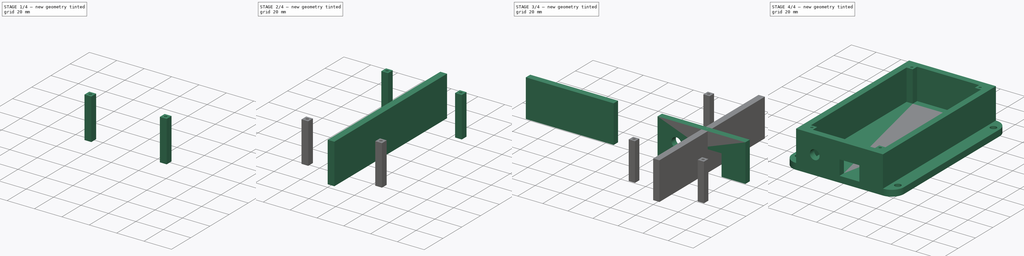
[diagram: build sequence overview — one tinted view per stage of 4, left to right]
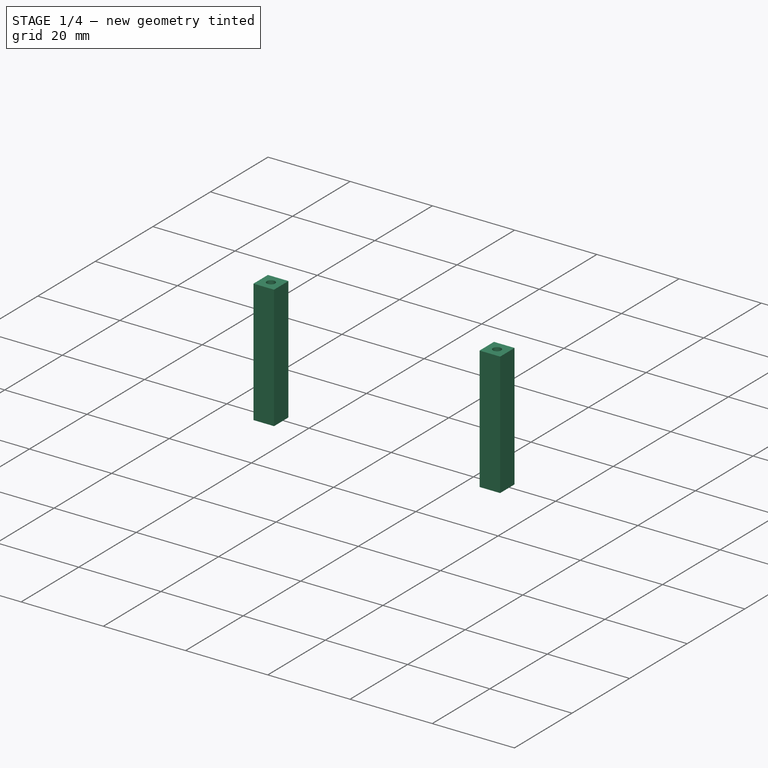
[diagram: stage 1 of 4 — iso view after this stage's code; geometry added in this stage tinted green]
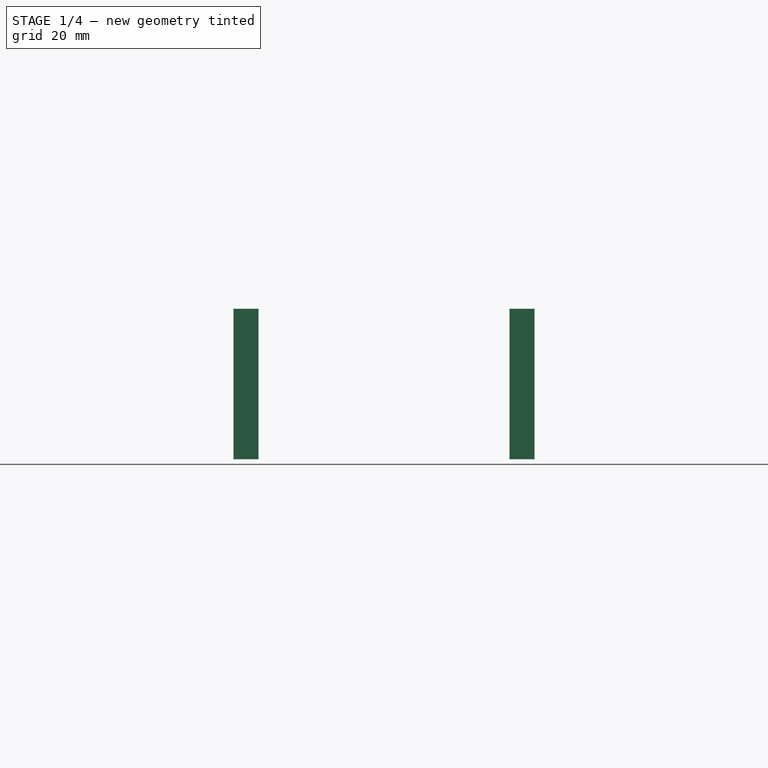
[diagram: stage 1 of 4 — front view after this stage's code; geometry added in this stage tinted green]
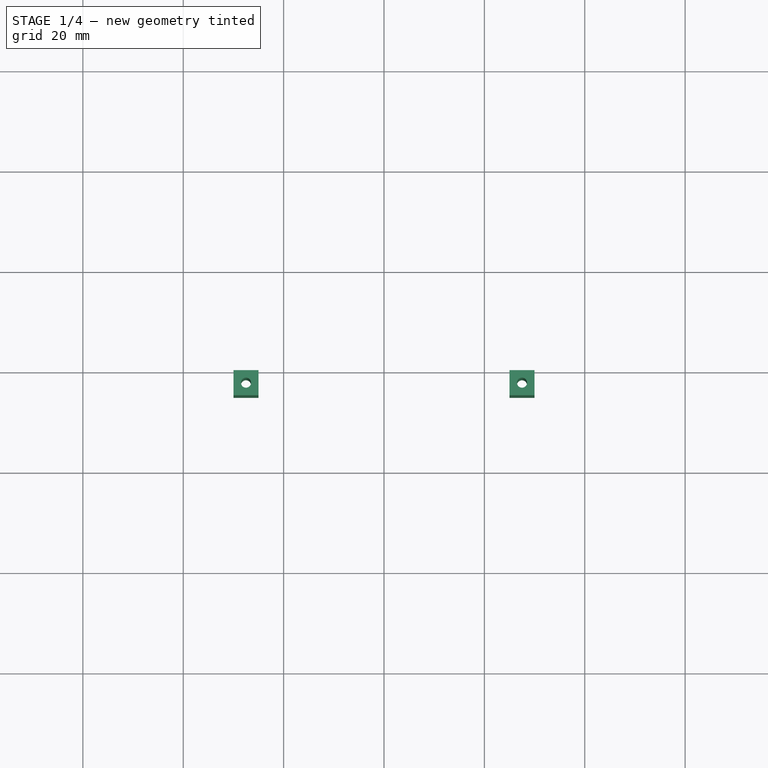
[diagram: stage 1 of 4 — top view after this stage's code; geometry added in this stage tinted green]
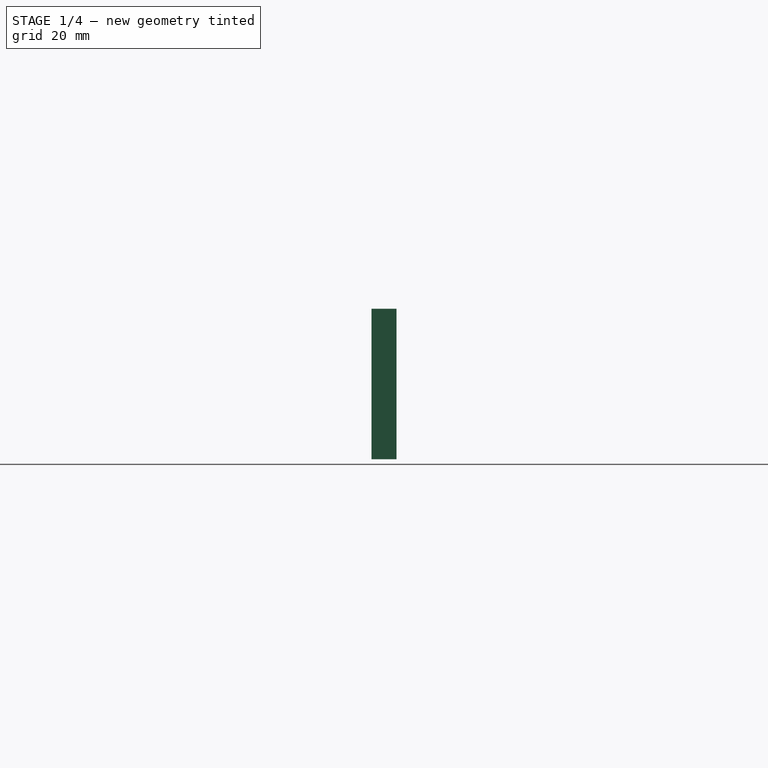
[diagram: stage 1 of 4 — right view after this stage's code; geometry added in this stage tinted green]
FCSTD DOCUMENT  (FreeCAD 0.19R24291 (Git))
Label: homework1.1
License: All rights reserved
LicenseURL: http://en.wikipedia.org/wiki/All_rights_reserved
objects: Sketcher::SketchObject×9, PartDesign::Pad×9, PartDesign::Body×9, Part::MultiFuse×1
note: 37 computed .brp shape members not serialized (recipe doc carries the construction recipe); baked Part::Feature solids carry a one-line shape summary decoded from their .brp

FEATURE [PartDesign::Body] Body006  label="Hole in the left frame"
  Group = -> [Sketch007,Pad006]
  Origin = -> Origin006
  Placement = pos=(0,15,0) rot=(0,0,1;0rad)
  Tip = -> Pad006
FEATURE [Sketcher::SketchObject] Sketch008
  FullyConstrained = true
  MapMode = 5
  Support = -> [XY_Plane007]
  sketch-geometry (5):
    g0: LineSegment StartX=-30 StartY=-40 StartZ=0 EndX=-25 EndY=-40 EndZ=0
    g1: LineSegment StartX=-25 StartY=-40 StartZ=0 EndX=-25 EndY=-45 EndZ=0
    g2: LineSegment StartX=-25 StartY=-45 StartZ=0 EndX=-30 EndY=-45 EndZ=0
    g3: LineSegment StartX=-30 StartY=-45 StartZ=0 EndX=-30 EndY=-40 EndZ=0
    g4: Circle CenterX=-27.5 CenterY=-42.5 CenterZ=0 NormalX=0 NormalY=0 NormalZ=1 AngleXU=0 Radius=1
  constraints (15):
    c: Coincident(g0,g1)
    c: Coincident(g1,g2)
    c: Coincident(g2,g3)
    c: Coincident(g3,g0)
    c: Horizontal(g0)
    c: Horizontal(g2)
    c: Vertical(g1)
    c: Vertical(g3)
    c: DistanceY(g0,g-1) = 40
    c: DistanceX(g1,g-1) = 25
    c: DistanceY(g3,g3) = 5
    c: DistanceX(g2,g2) = 5
    c: DistanceY(g4,g0) = 2.5
    c: DistanceX(g0,g4) = 2.5
    c: Diameter(g4) = 2
FEATURE [PartDesign::Pad] Pad007
  Direction = (1,1,1)
  Length = 30
  Length2 = 100
  Profile = -> Sketch008
  Type = 0
FEATURE [PartDesign::Body] Body007  label="Hole in the left frame1"
  Group = -> [Sketch008,Pad007]
  Origin = -> Origin007
  Placement = pos=(0,-15,0) rot=(0,0,1;0rad)
  Tip = -> Pad007
FEATURE [Sketcher::SketchObject] Sketch009
  FullyConstrained = true
  MapMode = 5
  Support = -> [XY_Plane008]
  sketch-geometry (5):
    g0: LineSegment StartX=25 StartY=-40 StartZ=0 EndX=30 EndY=-40 EndZ=0
    g1: LineSegment StartX=30 StartY=-40 StartZ=0 EndX=30 EndY=-45 EndZ=0
    g2: LineSegment StartX=30 StartY=-45 StartZ=0 EndX=25 EndY=-45 EndZ=0
    g3: LineSegment StartX=25 StartY=-45 StartZ=0 EndX=25 EndY=-40 EndZ=0
    g4: Circle CenterX=27.5 CenterY=-42.5 CenterZ=0 NormalX=0 NormalY=0 NormalZ=1 AngleXU=0 Radius=1
  constraints (15):
    c: Coincident(g0,g1)
    c: Coincident(g1,g2)
    c: Coincident(g2,g3)
    c: Coincident(g3,g0)
    c: Horizontal(g0)
    c: Horizontal(g2)
    c: Vertical(g1)
    c: Vertical(g3)
    c: DistanceX(g-1,g0) = 25
    c: DistanceY(g0,g-1) = 40
    c: DistanceY(g3,g3) = 5
    c: DistanceX(g0,g0) = 5
    c: DistanceY(g4,g0) = 2.5
    c: DistanceX(g0,g4) = 2.5
    c: Diameter(g4) = 2
FEATURE [PartDesign::Pad] Pad008
  Direction = (1,1,1)
  Length = 30
  Length2 = 100
  Profile = -> Sketch009
  Type = 0
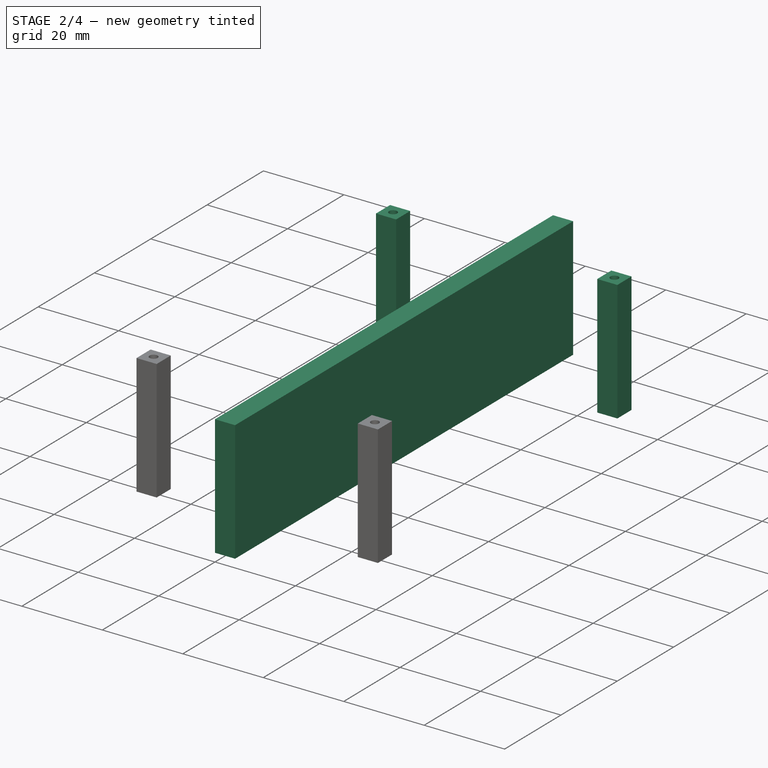
[diagram: stage 2 of 4 — iso view after this stage's code; geometry added in this stage tinted green]
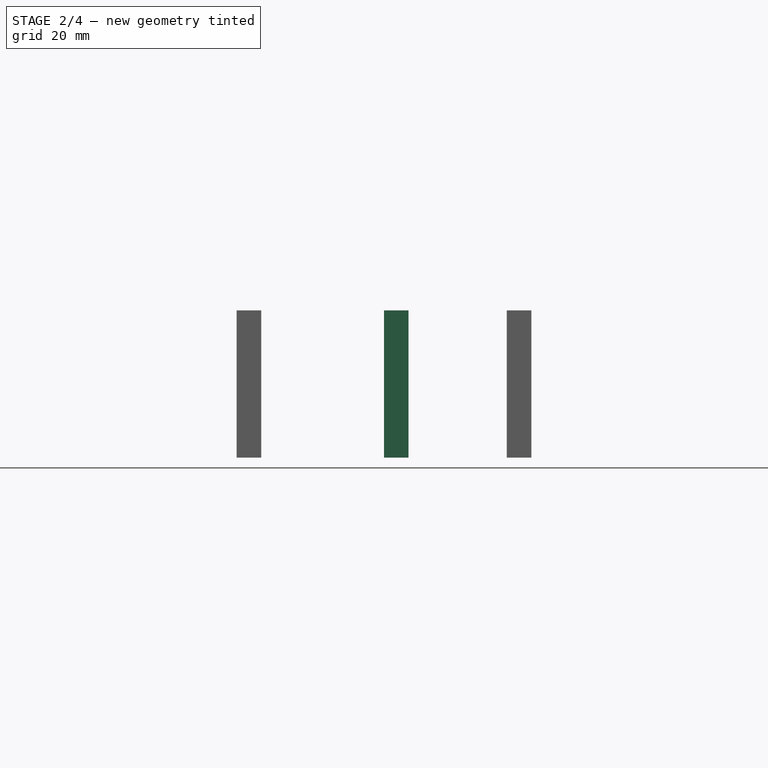
[diagram: stage 2 of 4 — front view after this stage's code; geometry added in this stage tinted green]
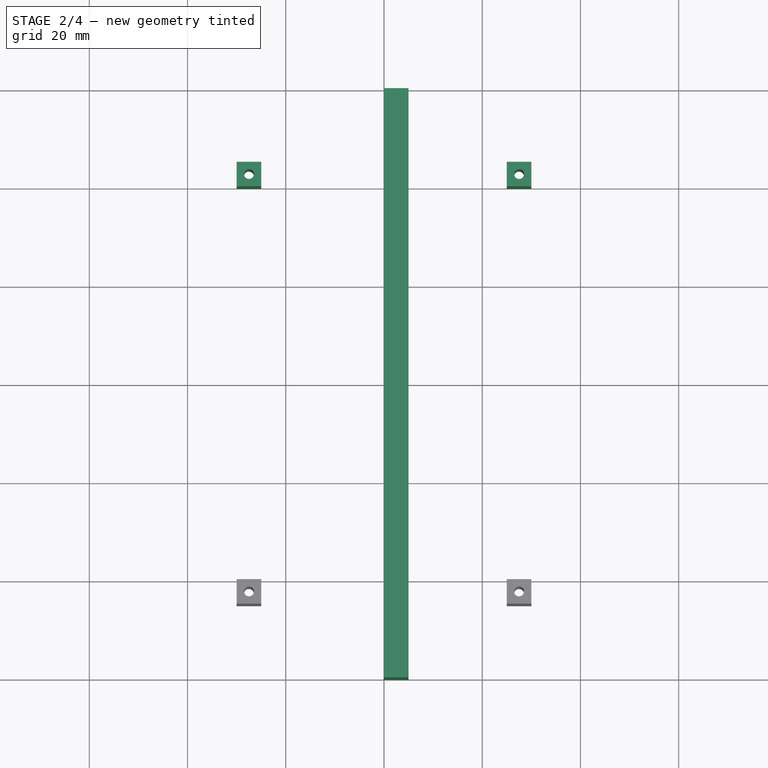
[diagram: stage 2 of 4 — top view after this stage's code; geometry added in this stage tinted green]
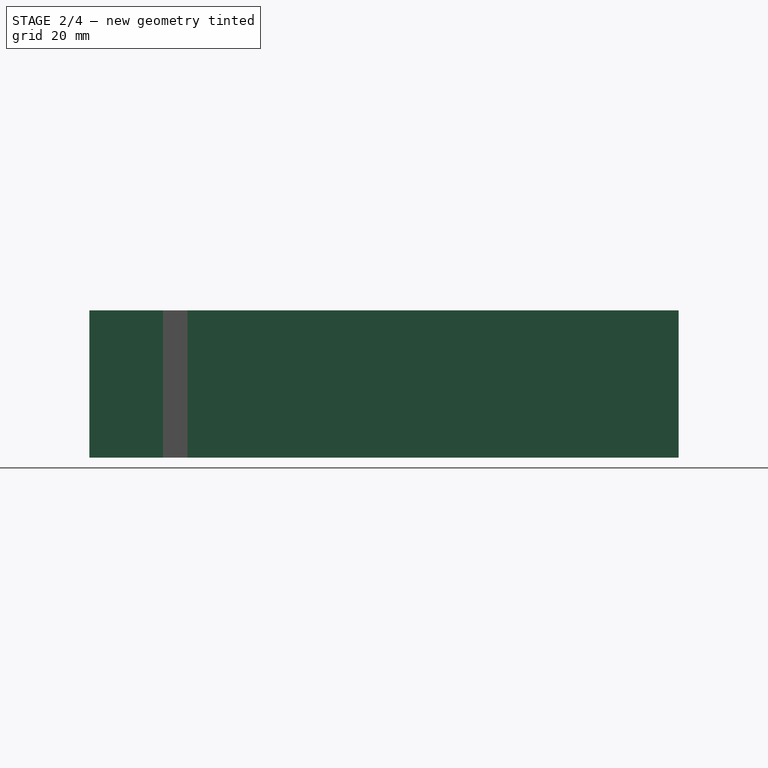
[diagram: stage 2 of 4 — right view after this stage's code; geometry added in this stage tinted green]
FEATURE [PartDesign::Body] Body003
  Group = -> [Sketch003,Pad003]
  Origin = -> Origin003
  Placement = pos=(30,0,0) rot=(0,0,1;0rad)
  Tip = -> Pad003
FEATURE [Sketcher::SketchObject] Sketch004
  FullyConstrained = true
  MapMode = 5
  Placement = pos=(0,0,0) rot=(0.57735,0.57735,0.57735;2.0944rad)
  Support = -> [YZ_Plane004]
  sketch-geometry (4):
    g0: LineSegment StartX=60 StartY=30 StartZ=0 EndX=-60 EndY=30 EndZ=0
    g1: LineSegment StartX=-60 StartY=30 StartZ=0 EndX=-60 EndY=0 EndZ=0
    g2: LineSegment StartX=-60 StartY=0 StartZ=0 EndX=60 EndY=0 EndZ=0
    g3: LineSegment StartX=60 StartY=0 StartZ=0 EndX=60 EndY=30 EndZ=0
  constraints (11):
    c: Coincident(g0,g1)
    c: Coincident(g1,g2)
    c: Coincident(g2,g3)
    c: Coincident(g3,g0)
    c: Horizontal(g0)
    c: Vertical(g1)
    c: Vertical(g3)
    c: DistanceX(g2,g2) = 120
    c: DistanceY(g3,g3) = 30
    c: PointOnObject(g2,g-1)
    c: Symmetric(g1,g2,g-2)
FEATURE [PartDesign::Pad] Pad004
  Direction = (1,1,1)
  Length = 5
  Length2 = 100
  Placement = pos=(0,0,0) rot=(0.57735,0.57735,0.57735;2.0944rad)
  Profile = -> Sketch004
  Type = 0
FEATURE [PartDesign::Body] Body004
  Group = -> [Sketch004,Pad004]
  Origin = -> Origin004
  Placement = pos=(-35,0,0) rot=(0,0,1;0rad)
  Tip = -> Pad004
FEATURE [Sketcher::SketchObject] Sketch005
  FullyConstrained = true
  MapMode = 5
  Support = -> [XY_Plane005]
  sketch-geometry (5):
    g0: LineSegment StartX=25 StartY=45 StartZ=0 EndX=30 EndY=45 EndZ=0
    g1: LineSegment StartX=30 StartY=45 StartZ=0 EndX=30 EndY=40 EndZ=0
    g2: LineSegment StartX=30 StartY=40 StartZ=0 EndX=25 EndY=40 EndZ=0
    g3: LineSegment StartX=25 StartY=40 StartZ=0 EndX=25 EndY=45 EndZ=0
    g4: Circle CenterX=27.5 CenterY=42.5 CenterZ=0 NormalX=0 NormalY=0 NormalZ=1 AngleXU=0 Radius=1
  constraints (15):
    c: Coincident(g0,g1)
    c: Coincident(g1,g2)
    c: Coincident(g2,g3)
    c: Coincident(g3,g0)
    c: Horizontal(g0)
    c: Horizontal(g2)
    c: Vertical(g1)
    c: Vertical(g3)
    c: DistanceY(g-1,g2) = 40
    c: DistanceX(g-1,g0) = 25
    c: DistanceX(g0,g0) = 5
    c: DistanceY(g1,g1) = 5
    c: DistanceY(g4,g0) = 2.5
    c: DistanceX(g0,g4) = 2.5
    c: Diameter(g4) = 2
FEATURE [PartDesign::Pad] Pad005
  Direction = (1,1,1)
  Length = 30
  Length2 = 100
  Profile = -> Sketch005
  Type = 0
FEATURE [PartDesign::Body] Body005  label="Hole in the right frame"
  Group = -> [Sketch005,Pad005]
  Origin = -> Origin005
  Placement = pos=(0,15,0) rot=(0,0,1;0rad)
  Tip = -> Pad005
FEATURE [Sketcher::SketchObject] Sketch007
  FullyConstrained = true
  MapMode = 5
  Support = -> [XY_Plane006]
  sketch-geometry (5):
    g0: LineSegment StartX=-30 StartY=45 StartZ=0 EndX=-25 EndY=45 EndZ=0
    g1: LineSegment StartX=-25 StartY=45 StartZ=0 EndX=-25 EndY=40 EndZ=0
    g2: LineSegment StartX=-25 StartY=40 StartZ=0 EndX=-30 EndY=40 EndZ=0
    g3: LineSegment StartX=-30 StartY=40 StartZ=0 EndX=-30 EndY=45 EndZ=0
    g4: Circle CenterX=-27.5 CenterY=42.5 CenterZ=0 NormalX=0 NormalY=0 NormalZ=1 AngleXU=0 Radius=1
  constraints (15):
    c: Coincident(g0,g1)
    c: Coincident(g1,g2)
    c: Coincident(g2,g3)
    c: Coincident(g3,g0)
    c: Horizontal(g0)
    c: Horizontal(g2)
    c: Vertical(g1)
    c: Vertical(g3)
    c: DistanceX(g0,g-1) = 25
    c: DistanceY(g-1,g0) = 45
    c: DistanceY(g3,g3) = 5
    c: DistanceX(g0,g0) = 5
    c: DistanceY(g4,g0) = 2.5
    c: DistanceX(g0,g4) = 2.5
    c: Diameter(g4) = 2
FEATURE [PartDesign::Pad] Pad006
  Direction = (1,1,1)
  Length = 30
  Length2 = 100
  Profile = -> Sketch007
  Type = 0
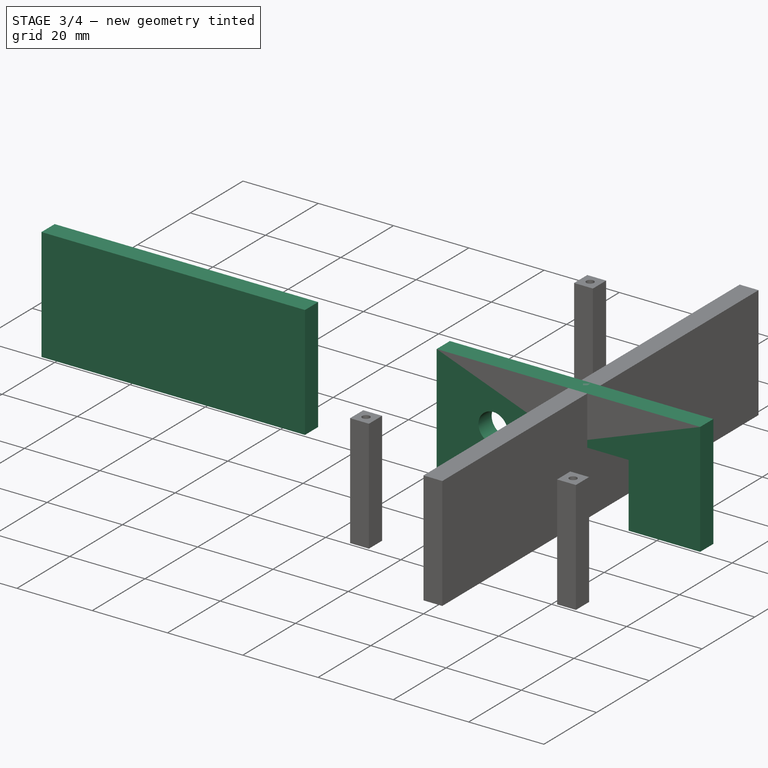
[diagram: stage 3 of 4 — iso view after this stage's code; geometry added in this stage tinted green]
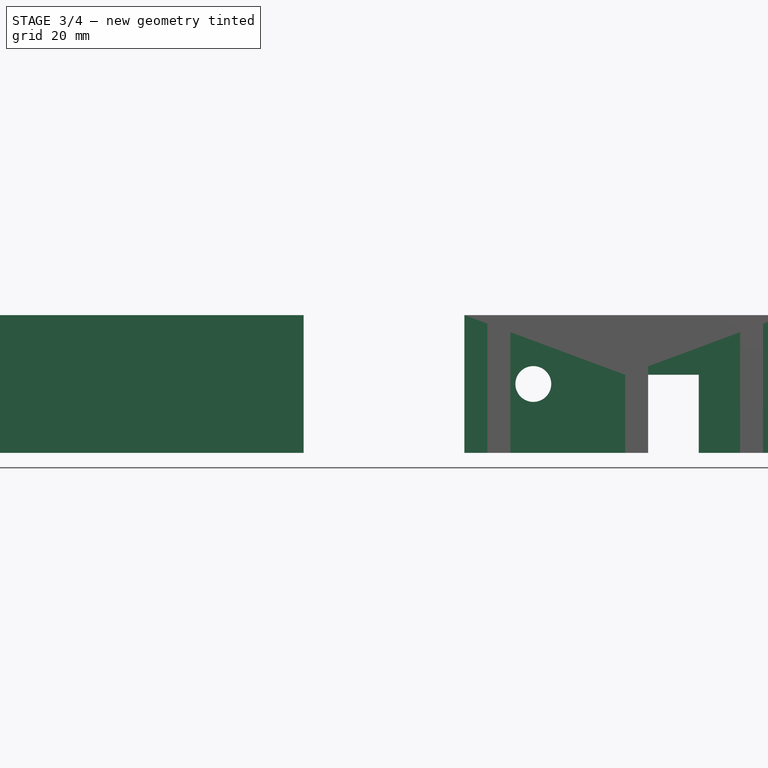
[diagram: stage 3 of 4 — front view after this stage's code; geometry added in this stage tinted green]
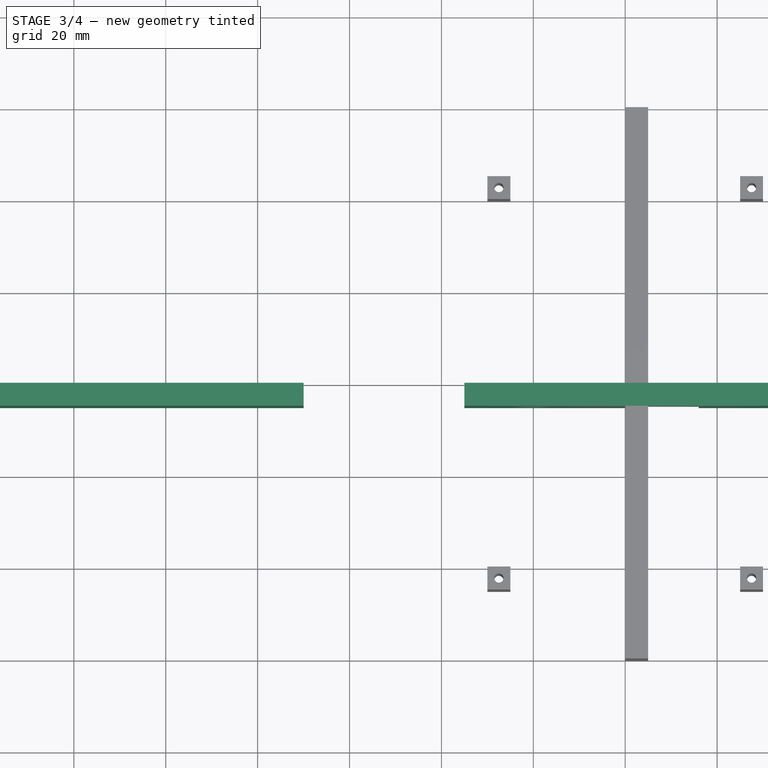
[diagram: stage 3 of 4 — top view after this stage's code; geometry added in this stage tinted green]
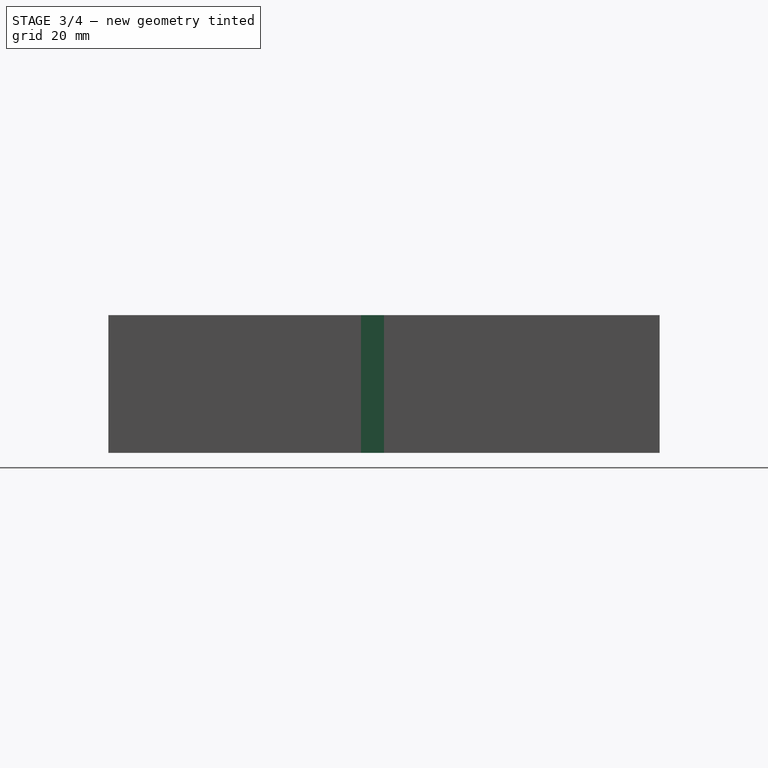
[diagram: stage 3 of 4 — right view after this stage's code; geometry added in this stage tinted green]
FEATURE [PartDesign::Body] Body
  Group = -> [Sketch,Pad]
  Origin = -> Origin
  Tip = -> Pad
FEATURE [Sketcher::SketchObject] Sketch001
  FullyConstrained = true
  MapMode = 5
  Placement = pos=(0,0,0) rot=(1,0,0;1.5708rad)
  Support = -> [XZ_Plane001]
  sketch-geometry (9):
    g0: LineSegment StartX=-35 StartY=30 StartZ=0 EndX=35 EndY=30 EndZ=0
    g1: LineSegment StartX=35 StartY=30 StartZ=0 EndX=35 EndY=0 EndZ=0
    g2: LineSegment StartX=35 StartY=0 StartZ=0 EndX=-35 EndY=0 EndZ=0
    g3: LineSegment StartX=-35 StartY=0 StartZ=0 EndX=-35 EndY=30 EndZ=0
    g4: Circle CenterX=-20 CenterY=15 CenterZ=0 NormalX=0 NormalY=0 NormalZ=1 AngleXU=0 Radius=3.9
    g5: LineSegment StartX=1.8e-15 StartY=17 StartZ=0 EndX=1.8e-15 EndY=0 EndZ=0
    g6: LineSegment StartX=1.8e-15 StartY=17 StartZ=0 EndX=16 EndY=17 EndZ=0
    g7: LineSegment StartX=16 StartY=17 StartZ=0 EndX=16 EndY=0 EndZ=0
    g8: LineSegment StartX=16 StartY=0 StartZ=0 EndX=1.8e-15 EndY=0 EndZ=0
  constraints (25):
    c: Coincident(g0,g1)
    c: Coincident(g1,g2)
    c: Coincident(g2,g3)
    c: Coincident(g3,g0)
    c: Horizontal(g0)
    c: Vertical(g1)
    c: Vertical(g3)
    c: DistanceX(g2,g2) = 70
    c: PointOnObject(g1,g-1)
    c: DistanceY(g3,g3) = 30
    c: Symmetric(g2,g1,g-2)
    c: DistanceX(g0,g4) = 15
    c: DistanceY(g2,g4) = 15
    c: Diameter(g4) = 7.8
    c: Vertical(g5)
    c: Coincident(g6,g5)
    c: Horizontal(g6)
    c: Coincident(g7,g6)
    c: Vertical(g7)
    c: Coincident(g8,g7)
    c: Coincident(g8,g5)
    c: Horizontal(g8)
    c: DistanceY(g5,g5) = 17
    c: DistanceX(g8,g8) = 16
    c: Symmetric(g2,g2,g5)
FEATURE [PartDesign::Pad] Pad001
  Direction = (1,1,1)
  Length = 5
  Length2 = 100
  Placement = pos=(0,0,0) rot=(1,0,0;1.5708rad)
  Profile = -> Sketch001
  Type = 0
FEATURE [PartDesign::Body] Body001
  Group = -> [Sketch001,Pad001]
  Origin = -> Origin001
  Placement = pos=(0,-60,0) rot=(0,0,1;0rad)
  Tip = -> Pad001
FEATURE [Sketcher::SketchObject] Sketch002
  FullyConstrained = true
  MapMode = 5
  Placement = pos=(0,0,0) rot=(1,0,0;1.5708rad)
  Support = -> [XZ_Plane002]
  sketch-geometry (4):
    g0: LineSegment StartX=-70 StartY=30 StartZ=0 EndX=-140 EndY=30 EndZ=0
    g1: LineSegment StartX=-140 StartY=30 StartZ=0 EndX=-140 EndY=0 EndZ=0
    g2: LineSegment StartX=-140 StartY=0 StartZ=0 EndX=-70 EndY=0 EndZ=0
    g3: LineSegment StartX=-70 StartY=0 StartZ=0 EndX=-70 EndY=30 EndZ=0
  constraints (11):
    c: Coincident(g0,g1)
    c: Coincident(g1,g2)
    c: Coincident(g2,g3)
    c: Coincident(g3,g0)
    c: Horizontal(g0)
    c: Horizontal(g2)
    c: Vertical(g1)
    c: Vertical(g3)
    c: DistanceX(g2,g2) = 70
    c: DistanceY(g3,g3) = 30
    c: Symmetric(g1,g-1,g2)
FEATURE [PartDesign::Pad] Pad002
  Direction = (1,1,1)
  Length = 5
  Length2 = 100
  Placement = pos=(0,0,0) rot=(1,0,0;1.5708rad)
  Profile = -> Sketch002
  Type = 0
FEATURE [PartDesign::Body] Body002
  Group = -> [Sketch002,Pad002]
  Origin = -> Origin002
  Placement = pos=(105,65,0) rot=(0,0,1;0rad)
  Tip = -> Pad002
FEATURE [Sketcher::SketchObject] Sketch003
  FullyConstrained = true
  MapMode = 5
  Placement = pos=(0,0,0) rot=(0.57735,0.57735,0.57735;2.0944rad)
  Support = -> [YZ_Plane003]
  sketch-geometry (4):
    g0: LineSegment StartX=-60 StartY=30 StartZ=0 EndX=60 EndY=30 EndZ=0
    g1: LineSegment StartX=60 StartY=30 StartZ=0 EndX=60 EndY=0 EndZ=0
    g2: LineSegment StartX=60 StartY=0 StartZ=0 EndX=-60 EndY=0 EndZ=0
    g3: LineSegment StartX=-60 StartY=0 StartZ=0 EndX=-60 EndY=30 EndZ=0
  constraints (10):
    c: Coincident(g0,g1)
    c: Coincident(g1,g2)
    c: Coincident(g2,g3)
    c: Coincident(g3,g0)
    c: Vertical(g1)
    c: DistanceX(g2,g2) = 120
    c: DistanceY(g3,g3) = 30
    c: Symmetric(g2,g1,g-2)
    c: Symmetric(g0,g0,g-2)
    c: PointOnObject(g1,g-1)
FEATURE [PartDesign::Pad] Pad003
  Direction = (1,1,1)
  Length = 5
  Length2 = 100
  Placement = pos=(0,0,0) rot=(0.57735,0.57735,0.57735;2.0944rad)
  Profile = -> Sketch003
  Type = 0
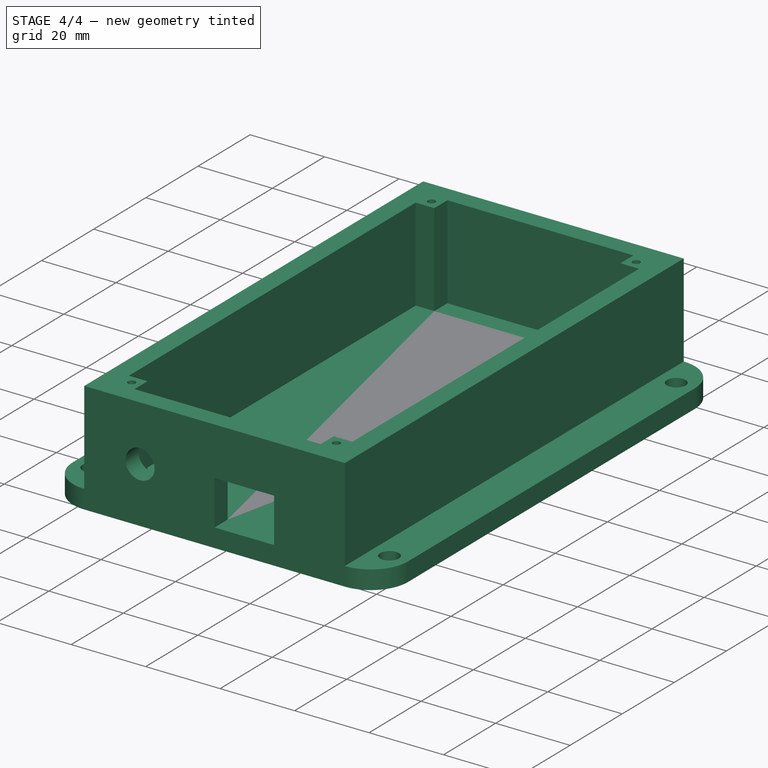
[diagram: stage 4 of 4 — iso view after this stage's code; geometry added in this stage tinted green]
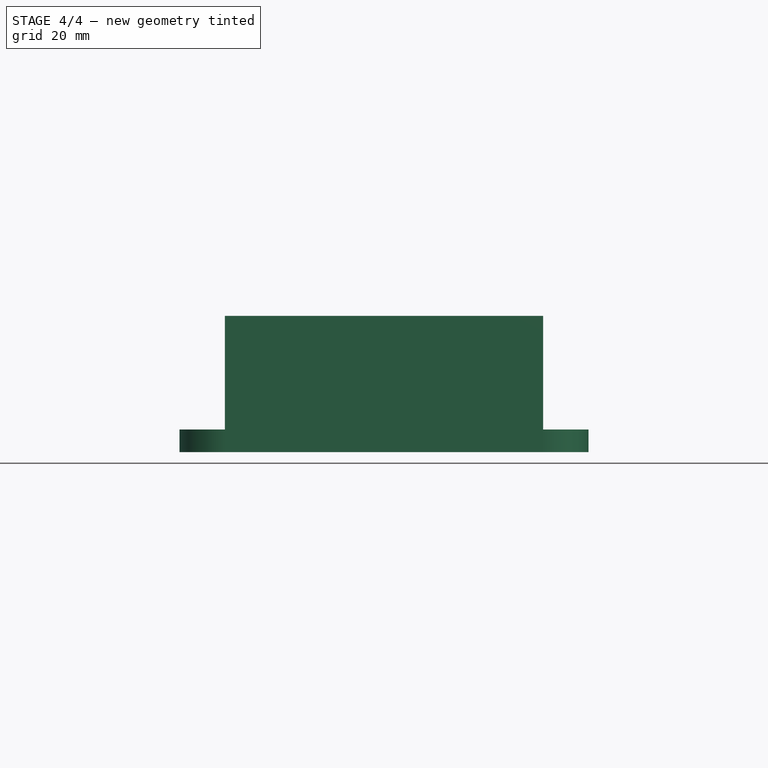
[diagram: stage 4 of 4 — front view after this stage's code; geometry added in this stage tinted green]
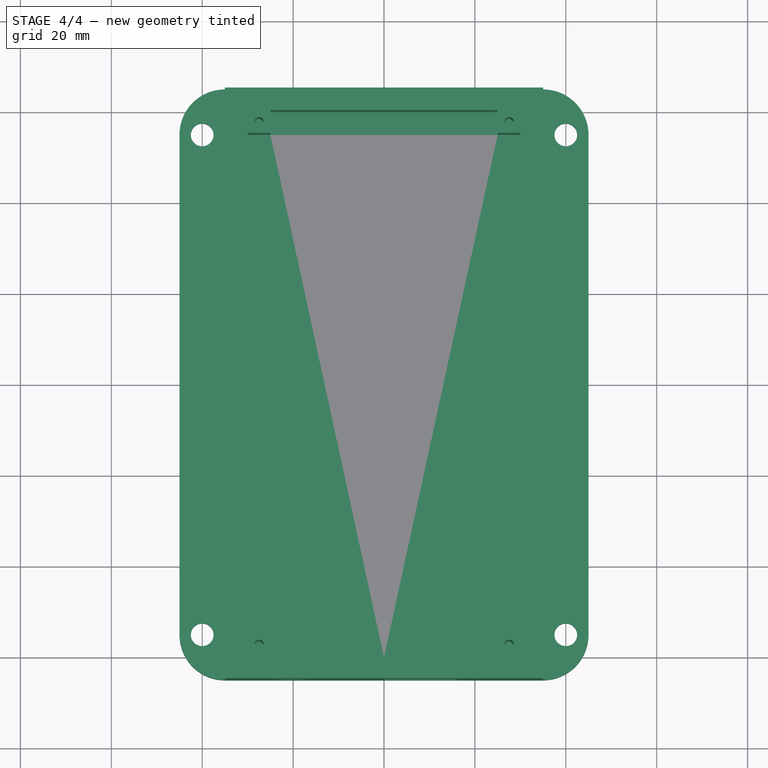
[diagram: stage 4 of 4 — top view after this stage's code; geometry added in this stage tinted green]
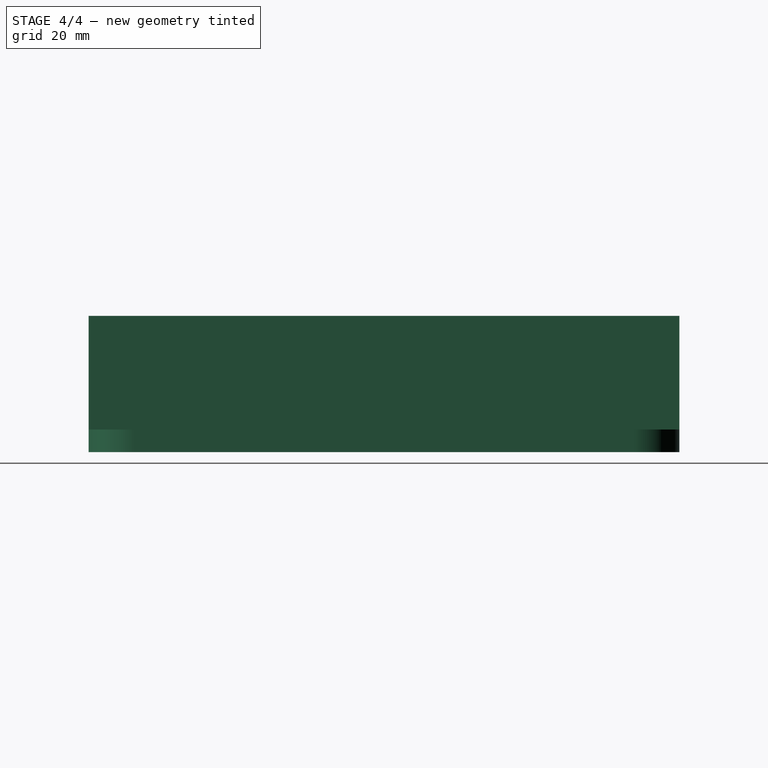
[diagram: stage 4 of 4 — right view after this stage's code; geometry added in this stage tinted green]
FEATURE [Sketcher::SketchObject] Sketch
  FullyConstrained = true
  MapMode = 5
  Support = -> [XY_Plane]
  sketch-geometry (16):
    g0: LineSegment StartX=-35.0224 StartY=65 StartZ=0 EndX=35 EndY=65 EndZ=0
    g1: LineSegment StartX=45 StartY=55 StartZ=0 EndX=45 EndY=-55 EndZ=0
    g2: LineSegment StartX=35 StartY=-65 StartZ=0 EndX=-35 EndY=-65 EndZ=0
    g3: LineSegment StartX=-45 StartY=-55 StartZ=0 EndX=-45 EndY=55.0224 EndZ=0
    g4: Circle CenterX=40 CenterY=-55 CenterZ=0 NormalX=0 NormalY=0 NormalZ=1 AngleXU=0 Radius=2.5
    g5: Circle CenterX=40 CenterY=55 CenterZ=0 NormalX=0 NormalY=0 NormalZ=1 AngleXU=0 Radius=2.5
    g6: Circle CenterX=-40 CenterY=-55 CenterZ=0 NormalX=0 NormalY=0 NormalZ=1 AngleXU=0 Radius=2.5
    g7: Circle CenterX=-40 CenterY=55 CenterZ=0 NormalX=0 NormalY=0 NormalZ=1 AngleXU=0 Radius=2.5
    g8: ArcOfCircle CenterX=-35.0224 CenterY=55.0224 CenterZ=0 NormalX=0 NormalY=0 NormalZ=1 AngleXU=0 Radius=9.97761 StartAngle=1.5708 EndAngle=3.14159
    g9: GeomPoint X=-45 Y=65 Z=0
    g10: ArcOfCircle CenterX=-35 CenterY=-55 CenterZ=0 NormalX=0 NormalY=0 NormalZ=1 AngleXU=0 Radius=10 StartAngle=3.14159 EndAngle=4.71239
    g11: GeomPoint X=-45 Y=-65 Z=0
    g12: ArcOfCircle CenterX=35 CenterY=-55 CenterZ=0 NormalX=0 NormalY=0 NormalZ=1 AngleXU=0 Radius=10 StartAngle=4.71239 EndAngle=6.28319
    g13: GeomPoint X=45 Y=-65 Z=0
    g14: ArcOfCircle CenterX=35 CenterY=55 CenterZ=0 NormalX=0 NormalY=0 NormalZ=1 AngleXU=0 Radius=10 StartAngle=1.5e-15 EndAngle=1.5708
    g15: GeomPoint X=45 Y=65 Z=0
  constraints (36):
    c: Horizontal(g2)
    c: Vertical(g3)
    c: DistanceY(g11,g9) = 130
    c: DistanceX(g11,g13) = 90
    c: Symmetric(g13,g15,g-1)
    c: Symmetric(g9,g15,g-2)
    c: Equal(g6,g7)
    c: Equal(g7,g5)
    c: Equal(g5,g4)
    c: DistanceX(g11,g6) = 5
    c: DistanceY(g11,g6) = 10
    c: Symmetric(g6,g7,g-1)
    c: DistanceX(g4,g13) = 5
    c: DistanceY(g13,g4) = 10
    c: Symmetric(g4,g5,g-1)
    c: Diameter(g6) = 5
    c: PointOnObject(g9,g0)
    c: PointOnObject(g9,g3)
    c: Tangent(g0,g8) = 1.5708
    c: Tangent(g3,g8) = 1.5708
    c: DistanceX(g0,g3) = -9.97761
    c: PointOnObject(g11,g2)
    c: PointOnObject(g11,g3)
    c: Tangent(g2,g10) = 1.5708
    c: Tangent(g3,g10) = 1.5708
    c: DistanceX(g3,g2) = 10
    c: PointOnObject(g13,g1)
    c: PointOnObject(g13,g2)
    c: Tangent(g1,g12) = 1.5708
    c: Tangent(g2,g12) = 1.5708
    c: DistanceX(g1,g2) = -10
    c: PointOnObject(g15,g0)
    c: PointOnObject(g15,g1)
    c: Tangent(g0,g14) = 1.5708
    c: Tangent(g1,g14) = 1.5708
    c: DistanceX(g0,g1) = 10
FEATURE [PartDesign::Pad] Pad
  Direction = (1,1,1)
  Length = 5
  Length2 = 100
  Profile = -> Sketch
  Type = 0
FEATURE [PartDesign::Body] Body008  label="Hole in the right frame 1"
  Group = -> [Sketch009,Pad008]
  Origin = -> Origin008
  Placement = pos=(0,-15,0) rot=(0,0,1;0rad)
  Tip = -> Pad008
FEATURE [Part::MultiFuse] Fusion
  Shapes = -> [Body,Body001,Body002,Body003,Body004,Body005,Body006,Body007,Body008]
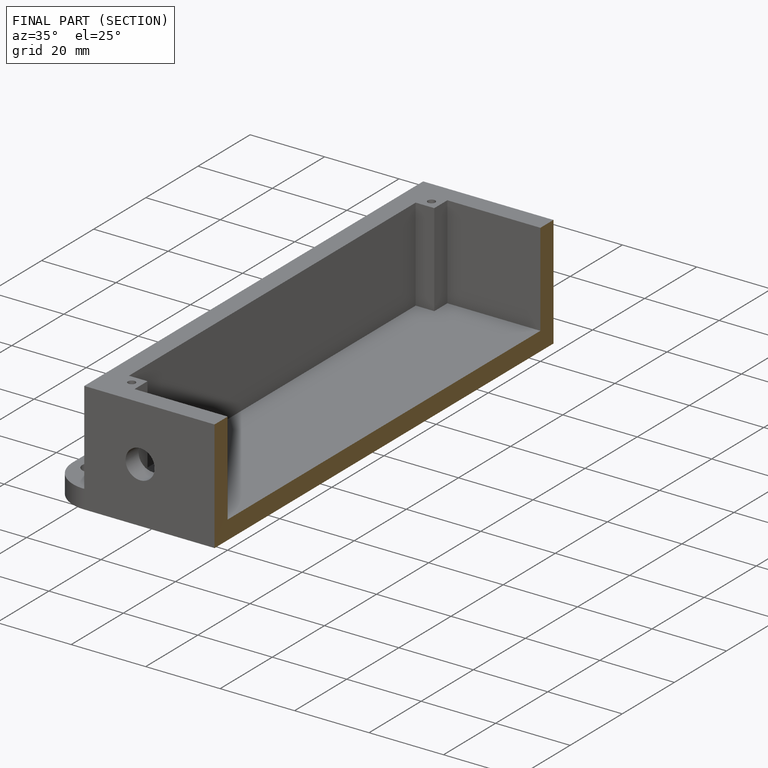
[diagram: finished part — half-section view (interior)]
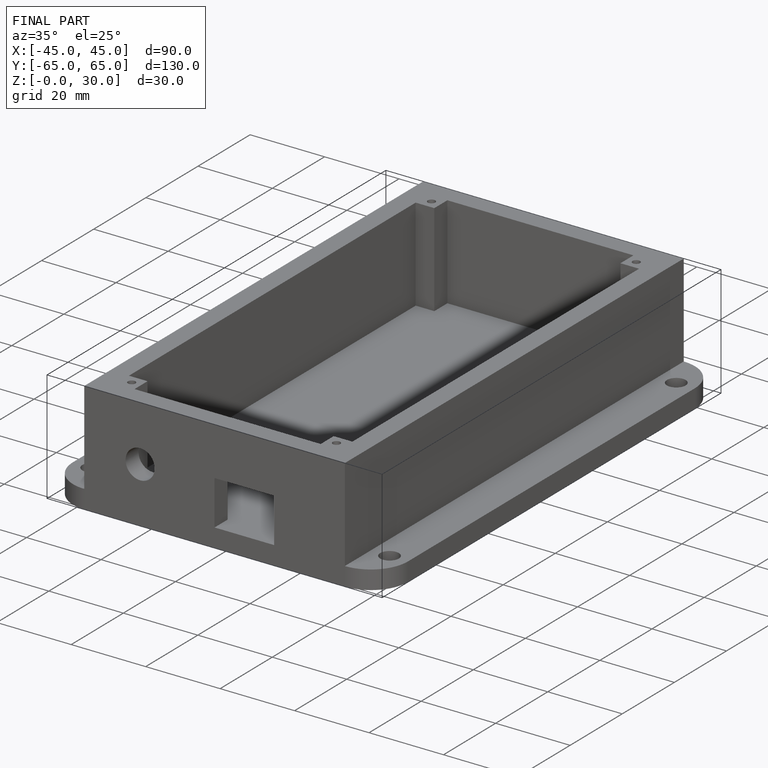
[diagram: finished part — iso view with bounding-box wireframe]
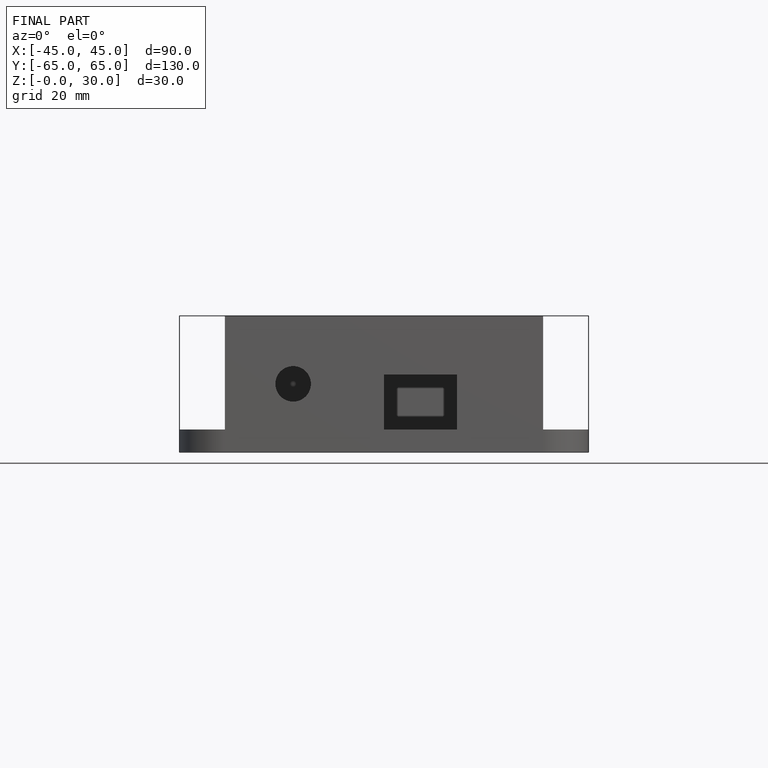
[diagram: finished part — front view with bounding-box wireframe]
